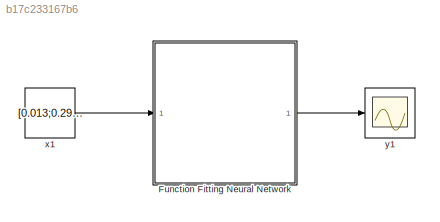
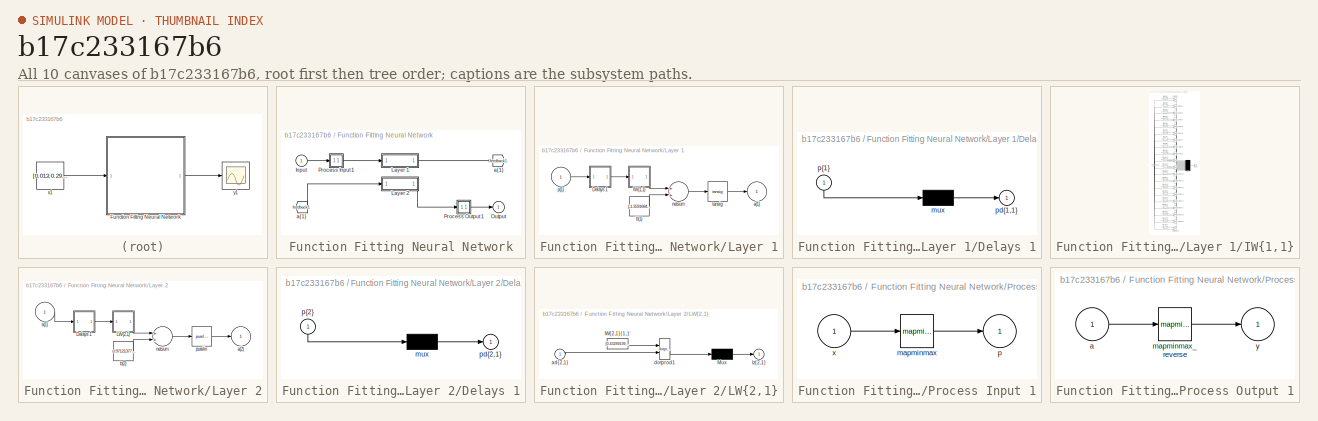
[diagram: thumbnail index - all 10 canvases of the model, root first then tree order]
MODEL slx_b17c233167b6
KIND model
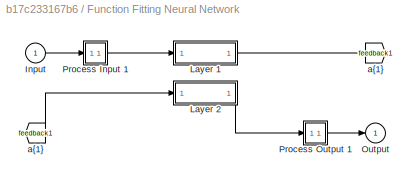
BLOCK [SubSystem] Function Fitting Neural Network
  Ports = [1, 1]
  RequestExecContextInheritance = off
BLOCK [From] Function Fitting Neural Network/ a{1} 
  GotoTag = feedback1
BLOCK [Inport] Function Fitting Neural Network/Input
  IconDisplay = Port number
  PortDimensions = 4800
BLOCK [SubSystem] Function Fitting Neural Network/Layer 1
  Ports = [1, 1]
  RequestExecContextInheritance = off
BLOCK [SubSystem] Function Fitting Neural Network/Layer 1/Delays 1
  Ports = [1, 1]
  RequestExecContextInheritance = off
BLOCK [Mux] Function Fitting Neural Network/Layer 1/Delays 1/mux
  Inputs = 1
  Ports = [1, 1]
BLOCK [Outport] Function Fitting Neural Network/Layer 1/Delays 1/pd{1,1}
  IconDisplay = Port number
BLOCK [Inport] Function Fitting Neural Network/Layer 1/Delays 1/p{1}
  IconDisplay = Port number
  PortDimensions = 4800
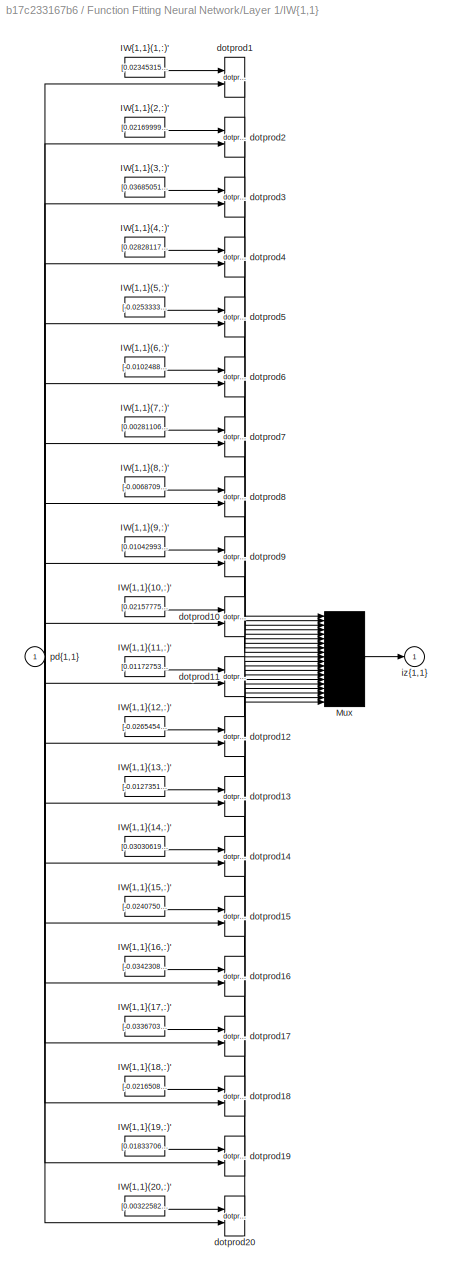
BLOCK [SubSystem] Function Fitting Neural Network/Layer 1/IW{1,1}
  Ports = [1, 1]
  RequestExecContextInheritance = off
BLOCK [Constant] Function Fitting Neural Network/Layer 1/IW{1,1}/IW{1,1}(1,:)'
  Value = [0.023453152414514074;0.010086622813460948;0.029880141339926242;0.046521232093490968;0.01104410987530919;-0.022645543602293663;-0.026015231113073408;-0.012564698208464483;-0.0527347796072071;0.027819334930927492;-0.012278464135484861;0.0038147418688932446;0.02261155690430576;0.00079410344891596354;-0.044110679287349554;0.014770874426324344;0.010901477956075137;-0.032588921568185117;0.0266753948553...<+103739ch>
BLOCK [Constant] Function Fitting Neural Network/Layer 1/IW{1,1}/IW{1,1}(10,:)'
  Value = [0.021577757762306107;-0.023883907218898673;-0.013650774413681059;-0.0023172771316909138;-0.0291568736045585;0.024594030512408424;0.018207383327099473;0.0029225121889399448;-0.036240733702542938;0.030372763756942738;0.036587292857449993;-0.014862223593950796;-0.01355130120623224;0.026186287683406764;0.030959434389333618;0.031540635448813241;-0.00074230025492756895;0.01747073238262643;0.00083227003...<+103801ch>
BLOCK [Constant] Function Fitting Neural Network/Layer 1/IW{1,1}/IW{1,1}(11,:)'
  Value = [0.011727536579058451;0.033483229356351632;-0.035256150461311961;-0.010231779800756841;0.021994217986437303;0.01700425440172304;0.027584941703213739;-0.035681031581511487;0.022779144771533193;0.027727541496033112;-0.026251498606517487;-0.03572903511774355;-0.015231422908164524;-0.010548469361745777;0.019622439839397255;0.010758619093163229;-0.011101396570409382;0.022377725261205912;0.0051475619783...<+103562ch>
BLOCK [Constant] Function Fitting Neural Network/Layer 1/IW{1,1}/IW{1,1}(12,:)'
  Value = [-0.026545436351179265;0.011136238570345363;0.030592718642918411;0.013193503965021553;-0.019107996389210753;-0.027283375978226769;-0.030686685896298124;0.010341954516792172;-0.023215665600563259;-0.027076714258963862;-0.031287348195449101;0.005076278132100296;-0.011353835862748199;0.0018526316881242973;-0.0025005440346263911;0.028776173168219725;0.027690607945003196;-0.020216950445875195;0.0003747...<+103536ch>
BLOCK [Constant] Function Fitting Neural Network/Layer 1/IW{1,1}/IW{1,1}(13,:)'
  Value = [-0.012735135206224516;-0.024185567806994306;-0.021673971576993824;-0.018682601065255492;-0.0075597312982765121;-0.0051937654448807342;0.0052406765918456199;0.0028437356052451769;-0.025031961682765603;0.02004249104584617;0.011024637173705899;-0.030494908442112202;-0.0088600512317381346;0.0036190288981481308;-0.039401235123137798;-0.013777849374843918;-0.00018487298263457081;-0.027602702937633134;-...<+103595ch>
BLOCK [Constant] Function Fitting Neural Network/Layer 1/IW{1,1}/IW{1,1}(14,:)'
  Value = [0.030306199783970963;0.012019180948445911;-0.024429935056740126;0.023130397013478948;0.012668206303950481;0.0015928594946225832;-0.0011530106537761405;-0.026455382354959603;0.009916670486297045;-0.0043089741461581595;0.0017529372208394244;-0.013065628494924764;0.016582984529113824;0.015401409142245786;0.010536479546333802;-0.027593312321014744;0.021798534756843534;0.011647388794151623;-0.02692850...<+103686ch>
BLOCK [Constant] Function Fitting Neural Network/Layer 1/IW{1,1}/IW{1,1}(15,:)'
  Value = [-0.024075088733823899;0.015319540159995077;-0.023111581884001042;-0.004146926175894892;-0.028715539996309349;0.01705352344604702;-0.016097340835130682;-0.0073761955424490981;0.031607163673733847;-0.030901404645405642;0.029385872670293609;0.013838906196767132;-0.0091985849594154144;0.033096480350323552;-0.0034823394942857452;0.013325601296938418;0.019463922049372688;0.013666037923913989;0.00096314...<+103837ch>
BLOCK [Constant] Function Fitting Neural Network/Layer 1/IW{1,1}/IW{1,1}(16,:)'
  Value = [-0.034230836837266583;-0.027132837329538348;-0.026374448158731436;-0.027262654833550042;0.013273752344468441;0.0093372313853384639;-0.022800304402231904;0.018141467201322072;-0.020588693148809928;0.01897832399915092;0.022685788437351764;-0.017254495054600614;-0.00035930863530989722;-0.0036555369871288852;0.0093949959339862388;-0.033430522835681563;0.0051874700189981481;0.016462300214337686;0.0022...<+103731ch>
BLOCK [Constant] Function Fitting Neural Network/Layer 1/IW{1,1}/IW{1,1}(17,:)'
  Value = [-0.033670339641409655;-0.024135716207476496;-0.00062529299591235828;0.0031034702343158776;0.026893211962158856;-0.046011255789677033;-0.013892417254928726;0.022887820611007675;0.0090172076244330619;-0.0011269670685192306;0.014386466841711963;0.016472573511123242;-0.01973809075676328;0.022965923537203319;-0.030698746603347236;-0.028930585088525675;-0.013551417162112682;-0.0017844525925664087;-0.02...<+103801ch>
BLOCK [Constant] Function Fitting Neural Network/Layer 1/IW{1,1}/IW{1,1}(18,:)'
  Value = [-0.021650847899794951;0.01739925908918348;0.0011474711635807288;0.029520514831991251;0.005058086641639082;-0.00039908338081677633;-0.0036713974359752332;0.02989666466641093;0.027424435416077322;-0.034534943513737905;0.029954751344605547;-0.0059290853699733026;-0.022905698423505615;0.010154966291002604;-0.0058577349341553987;-0.030831296240142934;0.024071948600243021;0.012953439377869398;-0.006998...<+103897ch>
BLOCK [Constant] Function Fitting Neural Network/Layer 1/IW{1,1}/IW{1,1}(19,:)'
  Value = [0.018337068161097765;-0.015552568791731395;0.033193441470791354;-0.022913855633931089;0.01387294129690462;0.032258666510185816;-0.018118023518245079;0.034516361322452213;0.016749902501462865;0.019960267996309733;0.021734175281138027;0.0091168168109616709;0.0031946149927985206;0.0018432690384041245;-0.023092957007907321;-0.029133187937718127;-0.026428820072063691;-0.002235919442282209;-0.008804853...<+103729ch>
BLOCK [Constant] Function Fitting Neural Network/Layer 1/IW{1,1}/IW{1,1}(2,:)'
  Value = [0.021699994230472135;0.012337301733706917;-0.0088487735112184624;-0.025141899249030503;0.00034872662071361966;0.028666400685672843;-0.0035919474219432558;0.02071823926788758;0.016115560003452087;-0.029030864247925118;-0.01096434203745879;-0.01283311676552047;0.027657455555844652;-0.016159241438358552;-0.026533024714028831;0.028286761817811173;-0.0044154211122058393;-0.0096750921165179773;0.011076...<+103695ch>
BLOCK [Constant] Function Fitting Neural Network/Layer 1/IW{1,1}/IW{1,1}(20,:)'
  Value = [0.0032258249225753078;-0.010256018490857026;0.0026712358139608337;0.023685831789770222;0.019285035492319507;0.0060662035191251171;0.028028190447309899;-0.031174941761859257;0.0012950541728624001;-0.011323655620711292;-0.0040198689588477913;0.02535270567250094;0.0010751831620710631;-0.016578795231684946;-0.011855847744629552;0.0049330409281610364;0.021755750873543464;0.034701131847881143;0.0159190...<+103710ch>
BLOCK [Constant] Function Fitting Neural Network/Layer 1/IW{1,1}/IW{1,1}(3,:)'
  Value = [0.036850514170333595;0.01070780297997825;-0.0018030169348842804;0.0098927996819943055;-0.0087803905358774231;-0.02799366871728335;-0.0059536104861992855;0.027971150052608269;0.019410104800965902;-0.022097099698958258;0.031269713849020539;-0.017724733064591741;-0.015071108722917321;-0.024178241379018944;0.029921339157268016;-0.0032648827443261803;0.036981602696569388;0.013221708436169584;0.0014356...<+103676ch>
BLOCK [Constant] Function Fitting Neural Network/Layer 1/IW{1,1}/IW{1,1}(4,:)'
  Value = [0.028281176066493108;0.022764981092428142;-0.01851302071862328;-0.0075189341958588609;0.012858494984593084;-0.01173779462357862;-0.02517872504956415;-0.011906471898066782;-0.018306136929093882;-0.012196897218594696;-0.034735612733028727;-0.03048022434538835;-0.028555752289981241;0.010117297262024139;-0.018804659808484409;0.018532230647123484;-0.0032279949606916075;0.011408901926368729;0.011498950...<+103914ch>
BLOCK [Constant] Function Fitting Neural Network/Layer 1/IW{1,1}/IW{1,1}(5,:)'
  Value = [-0.025333329139661357;-0.028889970139974776;0.017218895097556721;0.013348685724940789;-0.028982671677878005;-0.029016106647054868;0.014211020993745946;-0.029396454599084305;-0.0035717379823291631;-0.016048066567527542;-0.003951707263251605;-0.017013380523950624;0.0016234614074071623;-0.03163396425632517;-0.031265887428576632;-0.007770474645033781;0.017581009452514701;-0.0015369550942228199;0.0207...<+103791ch>
BLOCK [Constant] Function Fitting Neural Network/Layer 1/IW{1,1}/IW{1,1}(6,:)'
  Value = [-0.010248801553063147;0.019186019716248021;-0.025785901086787612;-0.015456715646882099;0.0036436693577541288;-0.029214091952582504;0.02764888994369382;0.0048463210512822716;0.029940522257989582;0.037134231519580493;-0.0065449547436202604;-0.024823940413581495;0.022310480552634539;-0.0085830802961355864;-0.018945340199202163;0.023548854895446648;-0.0051997953129447128;0.030486608754204308;-0.01528...<+104052ch>
BLOCK [Constant] Function Fitting Neural Network/Layer 1/IW{1,1}/IW{1,1}(7,:)'
  Value = [0.0028110629592186182;-0.0019486371766210188;-0.010532189426777114;0.030919837915453656;0.021068865124768379;-0.018461104504996363;0.0087250053010448497;-0.022831259989622786;-0.0054486459386072078;0.030961054553205421;0.0091858305506759535;-0.004398290643619426;0.038727131708465978;0.018989523707927624;-0.03110493167478981;-0.022507294982574835;-0.0051952106185620631;-0.0084629769309983935;0.010...<+103970ch>
BLOCK [Constant] Function Fitting Neural Network/Layer 1/IW{1,1}/IW{1,1}(8,:)'
  Value = [-0.0068709653474060758;-0.01803887201600211;0.0019679948946421727;-0.02573052766665614;0.027551091610104932;-0.023642230989760454;0.017454766782982013;0.011688086473510165;0.0061780882830214318;0.012144171693723168;0.036599366992894351;-0.016311484555579139;-0.015112532065628731;-0.014448356330669364;-0.016074980345777024;-0.0086306028652020968;0.015014062060010077;0.021130064442233951;0.01479973...<+103984ch>
BLOCK [Constant] Function Fitting Neural Network/Layer 1/IW{1,1}/IW{1,1}(9,:)'
  Value = [0.0104299380475079;0.020859516806310423;-0.012540161703382624;0.026316659309489811;-0.015782987786656114;0.0023192930081203851;-0.02572793193009117;-0.011040340010160851;0.021344046502674938;0.020605878081650018;-0.01889155810491849;0.014310661778260644;0.0038597352571561588;0.0077414458097942356;0.0013362807808614207;-0.023514112019987203;0.021242907983239894;0.017672645856744371;-0.001515909996...<+103611ch>
BLOCK [Mux] Function Fitting Neural Network/Layer 1/IW{1,1}/Mux
  Inputs = 20
  Ports = [20, 1]
BLOCK [Reference] Function Fitting Neural Network/Layer 1/IW{1,1}/dotprod1  REF=neural/Weight Functions/dotprod
  Ports = [2, 1]
  SourceBlock = neural/Weight Functions/dotprod
  SourceType = DOTPROD
BLOCK [Reference] Function Fitting Neural Network/Layer 1/IW{1,1}/dotprod10  REF=neural/Weight Functions/dotprod
  Ports = [2, 1]
  SourceBlock = neural/Weight Functions/dotprod
  SourceType = DOTPROD
BLOCK [Reference] Function Fitting Neural Network/Layer 1/IW{1,1}/dotprod11  REF=neural/Weight Functions/dotprod
  Ports = [2, 1]
  SourceBlock = neural/Weight Functions/dotprod
  SourceType = DOTPROD
BLOCK [Reference] Function Fitting Neural Network/Layer 1/IW{1,1}/dotprod12  REF=neural/Weight Functions/dotprod
  Ports = [2, 1]
  SourceBlock = neural/Weight Functions/dotprod
  SourceType = DOTPROD
BLOCK [Reference] Function Fitting Neural Network/Layer 1/IW{1,1}/dotprod13  REF=neural/Weight Functions/dotprod
  Ports = [2, 1]
  SourceBlock = neural/Weight Functions/dotprod
  SourceType = DOTPROD
BLOCK [Reference] Function Fitting Neural Network/Layer 1/IW{1,1}/dotprod14  REF=neural/Weight Functions/dotprod
  Ports = [2, 1]
  SourceBlock = neural/Weight Functions/dotprod
  SourceType = DOTPROD
BLOCK [Reference] Function Fitting Neural Network/Layer 1/IW{1,1}/dotprod15  REF=neural/Weight Functions/dotprod
  Ports = [2, 1]
  SourceBlock = neural/Weight Functions/dotprod
  SourceType = DOTPROD
BLOCK [Reference] Function Fitting Neural Network/Layer 1/IW{1,1}/dotprod16  REF=neural/Weight Functions/dotprod
  Ports = [2, 1]
  SourceBlock = neural/Weight Functions/dotprod
  SourceType = DOTPROD
BLOCK [Reference] Function Fitting Neural Network/Layer 1/IW{1,1}/dotprod17  REF=neural/Weight Functions/dotprod
  Ports = [2, 1]
  SourceBlock = neural/Weight Functions/dotprod
  SourceType = DOTPROD
BLOCK [Reference] Function Fitting Neural Network/Layer 1/IW{1,1}/dotprod18  REF=neural/Weight Functions/dotprod
  Ports = [2, 1]
  SourceBlock = neural/Weight Functions/dotprod
  SourceType = DOTPROD
BLOCK [Reference] Function Fitting Neural Network/Layer 1/IW{1,1}/dotprod19  REF=neural/Weight Functions/dotprod
  Ports = [2, 1]
  SourceBlock = neural/Weight Functions/dotprod
  SourceType = DOTPROD
BLOCK [Reference] Function Fitting Neural Network/Layer 1/IW{1,1}/dotprod2  REF=neural/Weight Functions/dotprod
  Ports = [2, 1]
  SourceBlock = neural/Weight Functions/dotprod
  SourceType = DOTPROD
BLOCK [Reference] Function Fitting Neural Network/Layer 1/IW{1,1}/dotprod20  REF=neural/Weight Functions/dotprod
  Ports = [2, 1]
  SourceBlock = neural/Weight Functions/dotprod
  SourceType = DOTPROD
BLOCK [Reference] Function Fitting Neural Network/Layer 1/IW{1,1}/dotprod3  REF=neural/Weight Functions/dotprod
  Ports = [2, 1]
  SourceBlock = neural/Weight Functions/dotprod
  SourceType = DOTPROD
BLOCK [Reference] Function Fitting Neural Network/Layer 1/IW{1,1}/dotprod4  REF=neural/Weight Functions/dotprod
  Ports = [2, 1]
  SourceBlock = neural/Weight Functions/dotprod
  SourceType = DOTPROD
BLOCK [Reference] Function Fitting Neural Network/Layer 1/IW{1,1}/dotprod5  REF=neural/Weight Functions/dotprod
  Ports = [2, 1]
  SourceBlock = neural/Weight Functions/dotprod
  SourceType = DOTPROD
BLOCK [Reference] Function Fitting Neural Network/Layer 1/IW{1,1}/dotprod6  REF=neural/Weight Functions/dotprod
  Ports = [2, 1]
  SourceBlock = neural/Weight Functions/dotprod
  SourceType = DOTPROD
BLOCK [Reference] Function Fitting Neural Network/Layer 1/IW{1,1}/dotprod7  REF=neural/Weight Functions/dotprod
  Ports = [2, 1]
  SourceBlock = neural/Weight Functions/dotprod
  SourceType = DOTPROD
BLOCK [Reference] Function Fitting Neural Network/Layer 1/IW{1,1}/dotprod8  REF=neural/Weight Functions/dotprod
  Ports = [2, 1]
  SourceBlock = neural/Weight Functions/dotprod
  SourceType = DOTPROD
BLOCK [Reference] Function Fitting Neural Network/Layer 1/IW{1,1}/dotprod9  REF=neural/Weight Functions/dotprod
  Ports = [2, 1]
  SourceBlock = neural/Weight Functions/dotprod
  SourceType = DOTPROD
BLOCK [Outport] Function Fitting Neural Network/Layer 1/IW{1,1}/iz{1,1}
  IconDisplay = Port number
BLOCK [Inport] Function Fitting Neural Network/Layer 1/IW{1,1}/pd{1,1}
  IconDisplay = Port number
  PortDimensions = 4800
BLOCK [Outport] Function Fitting Neural Network/Layer 1/a{1}
  IconDisplay = Port number
  InitialOutput = [0;0;0;0;0;0;0;0;0;0;0;0;0;0;0;0;0;0;0;0]
BLOCK [Constant] Function Fitting Neural Network/Layer 1/b{1}
  Value = [-1.3591684164839462;-1.2542492424012608;-1.104713726743473;-0.96143366612327241;0.81436875504268502;0.64322161520346355;-0.5252815710149028;0.35242783784621406;-0.2027214551539227;-0.073357531065857656;0.087228351435731571;-0.20357976677146611;-0.3545411962357497;0.52218200725293451;-0.6756570708659394;-0.81271596137742075;-0.94210093124104544;-1.1087481576922331;1.257169579856279;1.4036037877489...<+4ch>
BLOCK [Sum] Function Fitting Neural Network/Layer 1/netsum
  Inputs = 2
  Ports = [2, 1]
BLOCK [Inport] Function Fitting Neural Network/Layer 1/p{1}
  IconDisplay = Port number
  PortDimensions = 4800
BLOCK [Reference] Function Fitting Neural Network/Layer 1/tansig  REF=neural/Transfer Functions/tansig
  Ports = [1, 1]
  SourceBlock = neural/Transfer Functions/tansig
  SourceType = TANSIG
BLOCK [SubSystem] Function Fitting Neural Network/Layer 2
  Ports = [1, 1]
  RequestExecContextInheritance = off
BLOCK [SubSystem] Function Fitting Neural Network/Layer 2/Delays 1
  Ports = [1, 1]
  RequestExecContextInheritance = off
BLOCK [Mux] Function Fitting Neural Network/Layer 2/Delays 1/mux
  Inputs = 1
  Ports = [1, 1]
BLOCK [Outport] Function Fitting Neural Network/Layer 2/Delays 1/pd{2,1}
  IconDisplay = Port number
BLOCK [Inport] Function Fitting Neural Network/Layer 2/Delays 1/p{2}
  IconDisplay = Port number
  PortDimensions = 20
BLOCK [SubSystem] Function Fitting Neural Network/Layer 2/LW{2,1}
  Ports = [1, 1]
  RequestExecContextInheritance = off
BLOCK [Constant] Function Fitting Neural Network/Layer 2/LW{2,1}/IW{2,1}(1,:)'
  Value = [0.4328919920879426;-0.058248402710414357;0.15474281862801798;0.87565068428679194;-0.099078097113706409;-0.71973921166576815;0.37851507322797162;-0.75414360707856953;0.57824118532728574;0.08638378609416171;0.35106744530304862;0.28912377342075868;0.38851068345893247;-0.25999988625007586;-0.61078930825911282;-0.020108344978333192;0.48968199630235443;0.87019368233444627;0.11101200534097111;-0.6456294...<+10ch>
BLOCK [Mux] Function Fitting Neural Network/Layer 2/LW{2,1}/Mux
  Inputs = 1
  Ports = [1, 1]
BLOCK [Inport] Function Fitting Neural Network/Layer 2/LW{2,1}/ad{2,1}
  IconDisplay = Port number
  PortDimensions = 20
BLOCK [Reference] Function Fitting Neural Network/Layer 2/LW{2,1}/dotprod1  REF=neural/Weight Functions/dotprod
  Ports = [2, 1]
  SourceBlock = neural/Weight Functions/dotprod
  SourceType = DOTPROD
BLOCK [Outport] Function Fitting Neural Network/Layer 2/LW{2,1}/lz{2,1}
  IconDisplay = Port number
BLOCK [Inport] Function Fitting Neural Network/Layer 2/a{1} 
  IconDisplay = Port number
  PortDimensions = 20
BLOCK [Outport] Function Fitting Neural Network/Layer 2/a{2}
  IconDisplay = Port number
  InitialOutput = 0
BLOCK [Constant] Function Fitting Neural Network/Layer 2/b{2}
  Value = -0.9712137701031287
BLOCK [Sum] Function Fitting Neural Network/Layer 2/netsum
  Inputs = 2
  Ports = [2, 1]
BLOCK [Reference] Function Fitting Neural Network/Layer 2/purelin  REF=neural/Transfer Functions/purelin
  Ports = [1, 1]
  SourceBlock = neural/Transfer Functions/purelin
  SourceType = PURELIN
BLOCK [Outport] Function Fitting Neural Network/Output
  IconDisplay = Port number
  InitialOutput = 0
BLOCK [SubSystem] Function Fitting Neural Network/Process Input 1
  Ports = [1, 1]
  RequestExecContextInheritance = off
BLOCK [Reference] Function Fitting Neural Network/Process Input 1/mapminmax  REF=neural/Processing Functions/mapminmax
  Ports = [1, 1]
  SourceBlock = neural/Processing Functions/mapminmax
  SourceType = MAPMINMAX Preprocess
  xmax = [198;196;195;226;210;206;250;229;225;236;234;230;237;236;232;233;232;228;223;222;218;235;234;230;227;223;221;209;206;202;232;229;225;220;219;215;206;207;205;232;236;231;240;244;239;217;219;214;234;236;231;231;229;228;235;233;232;222;220;219;239;240;236;237;238;234;203;204;200;189;190;186;223;224;220;217;218;214;242;246;241;240;244;239;239;243;238;234;238;233;240;244;239;232;235;230;244;244;241;234...<+18801ch>
  xmin = [11;15;11;8;12;9;8;13;9;4;13;9;7;14;9;8;16;13;9;13;13;10;12;10;9;8;0;7;11;10;9;8;14;7;11;4;7;11;10;4;10;7;1;11;13;7;13;17;2;10;19;0;2;0;6;8;12;6;10;13;3;12;14;5;13;10;2;11;9;4;8;14;0;11;12;8;13;33;6;7;13;8;12;51;6;12;46;0;0;0;1;14;62;0;8;26;4;8;52;4;7;7;3;10;8;8;9;26;6;10;14;0;5;4;4;7;31;1;7;10;3;5;12;0;6;3;2;8;4;0;14;15;1;10;62;5;9;16;0;7;69;0;7;65;0;7;97;4;10;31;6;11;31;3;10;8;2;9;67;3;11;74;1;9...<+11121ch>
  ymax = 1
  ymin = -1
BLOCK [Outport] Function Fitting Neural Network/Process Input 1/p
  IconDisplay = Port number
  PortDimensions = 4800
BLOCK [Inport] Function Fitting Neural Network/Process Input 1/x
  IconDisplay = Port number
  PortDimensions = 4800
BLOCK [SubSystem] Function Fitting Neural Network/Process Output 1
  Ports = [1, 1]
  RequestExecContextInheritance = off
BLOCK [Inport] Function Fitting Neural Network/Process Output 1/a
  IconDisplay = Port number
  PortDimensions = 1
BLOCK [Reference] Function Fitting Neural Network/Process Output 1/mapminmax_reverse  REF=neural/Processing Functions/mapminmax_reverse
  Ports = [1, 1]
  SourceBlock = neural/Processing Functions/mapminmax_reverse
  SourceType = MAPMINMAX Reverse Process
  xmax = 314
  xmin = 5
  ymax = 1
  ymin = -1
BLOCK [Outport] Function Fitting Neural Network/Process Output 1/y
  IconDisplay = Port number
  PortDimensions = 1
BLOCK [Goto] Function Fitting Neural Network/a{1}
  GotoTag = feedback1
BLOCK [Constant] x1
  SampleTime = 1
  Value = [0.013;0.29;0.66;0.51;0.13;0.017;0.059;0.32;0.027;0.71;0.12;0.027;0.36;0.6;0.98;0.58;0.12;0.29;0.27;0.23;0.083;0.25;0.68;0.99;0.51;0.036;0.07;0.22;0.29;0.74;0.96;0.0058;0.074;0.67;0.41;0.75;0.75;0.56;0.72;0.25;0.89;0.59;0.3;0.45;0.95;0.19;0.61;0.35;0.45;0.68;0.48;0.2;0.11;0.1;0.32;0.28;0.82;0.9;0.72;0.1;0.5;0.2;0.1;0.73;0.037;0.15;0.82;0.053;0.63;0.99;0.96;0.79;0.068;0.69;0.84;0.67;0.64;0.86;0.48;...<+23646ch>
BLOCK [Scope] y1
  Floating = off
  NumInputPorts = 1
  Ports = [1]
  ShowLegends = off
LINE Function Fitting Neural Network/ a{1} :1 -> Function Fitting Neural Network/Layer 2:1
LINE Function Fitting Neural Network/Input:1 -> Function Fitting Neural Network/Process Input 1:1
LINE Function Fitting Neural Network/Layer 1/Delays 1/mux:1 -> Function Fitting Neural Network/Layer 1/Delays 1/pd{1,1}:1
LINE Function Fitting Neural Network/Layer 1/Delays 1/p{1}:1 -> Function Fitting Neural Network/Layer 1/Delays 1/mux:1
LINE Function Fitting Neural Network/Layer 1/Delays 1:1 -> Function Fitting Neural Network/Layer 1/IW{1,1}:1
LINE Function Fitting Neural Network/Layer 1/IW{1,1}/IW{1,1}(1,:)':1 -> Function Fitting Neural Network/Layer 1/IW{1,1}/dotprod1:1
LINE Function Fitting Neural Network/Layer 1/IW{1,1}/IW{1,1}(10,:)':1 -> Function Fitting Neural Network/Layer 1/IW{1,1}/dotprod10:1
LINE Function Fitting Neural Network/Layer 1/IW{1,1}/IW{1,1}(11,:)':1 -> Function Fitting Neural Network/Layer 1/IW{1,1}/dotprod11:1
LINE Function Fitting Neural Network/Layer 1/IW{1,1}/IW{1,1}(12,:)':1 -> Function Fitting Neural Network/Layer 1/IW{1,1}/dotprod12:1
LINE Function Fitting Neural Network/Layer 1/IW{1,1}/IW{1,1}(13,:)':1 -> Function Fitting Neural Network/Layer 1/IW{1,1}/dotprod13:1
LINE Function Fitting Neural Network/Layer 1/IW{1,1}/IW{1,1}(14,:)':1 -> Function Fitting Neural Network/Layer 1/IW{1,1}/dotprod14:1
LINE Function Fitting Neural Network/Layer 1/IW{1,1}/IW{1,1}(15,:)':1 -> Function Fitting Neural Network/Layer 1/IW{1,1}/dotprod15:1
LINE Function Fitting Neural Network/Layer 1/IW{1,1}/IW{1,1}(16,:)':1 -> Function Fitting Neural Network/Layer 1/IW{1,1}/dotprod16:1
LINE Function Fitting Neural Network/Layer 1/IW{1,1}/IW{1,1}(17,:)':1 -> Function Fitting Neural Network/Layer 1/IW{1,1}/dotprod17:1
LINE Function Fitting Neural Network/Layer 1/IW{1,1}/IW{1,1}(18,:)':1 -> Function Fitting Neural Network/Layer 1/IW{1,1}/dotprod18:1
LINE Function Fitting Neural Network/Layer 1/IW{1,1}/IW{1,1}(19,:)':1 -> Function Fitting Neural Network/Layer 1/IW{1,1}/dotprod19:1
LINE Function Fitting Neural Network/Layer 1/IW{1,1}/IW{1,1}(2,:)':1 -> Function Fitting Neural Network/Layer 1/IW{1,1}/dotprod2:1
LINE Function Fitting Neural Network/Layer 1/IW{1,1}/IW{1,1}(20,:)':1 -> Function Fitting Neural Network/Layer 1/IW{1,1}/dotprod20:1
LINE Function Fitting Neural Network/Layer 1/IW{1,1}/IW{1,1}(3,:)':1 -> Function Fitting Neural Network/Layer 1/IW{1,1}/dotprod3:1
LINE Function Fitting Neural Network/Layer 1/IW{1,1}/IW{1,1}(4,:)':1 -> Function Fitting Neural Network/Layer 1/IW{1,1}/dotprod4:1
LINE Function Fitting Neural Network/Layer 1/IW{1,1}/IW{1,1}(5,:)':1 -> Function Fitting Neural Network/Layer 1/IW{1,1}/dotprod5:1
LINE Function Fitting Neural Network/Layer 1/IW{1,1}/IW{1,1}(6,:)':1 -> Function Fitting Neural Network/Layer 1/IW{1,1}/dotprod6:1
LINE Function Fitting Neural Network/Layer 1/IW{1,1}/IW{1,1}(7,:)':1 -> Function Fitting Neural Network/Layer 1/IW{1,1}/dotprod7:1
LINE Function Fitting Neural Network/Layer 1/IW{1,1}/IW{1,1}(8,:)':1 -> Function Fitting Neural Network/Layer 1/IW{1,1}/dotprod8:1
LINE Function Fitting Neural Network/Layer 1/IW{1,1}/IW{1,1}(9,:)':1 -> Function Fitting Neural Network/Layer 1/IW{1,1}/dotprod9:1
LINE Function Fitting Neural Network/Layer 1/IW{1,1}/Mux:1 -> Function Fitting Neural Network/Layer 1/IW{1,1}/iz{1,1}:1
LINE Function Fitting Neural Network/Layer 1/IW{1,1}/dotprod10:1 -> Function Fitting Neural Network/Layer 1/IW{1,1}/Mux:10
LINE Function Fitting Neural Network/Layer 1/IW{1,1}/dotprod11:1 -> Function Fitting Neural Network/Layer 1/IW{1,1}/Mux:11
LINE Function Fitting Neural Network/Layer 1/IW{1,1}/dotprod12:1 -> Function Fitting Neural Network/Layer 1/IW{1,1}/Mux:12
LINE Function Fitting Neural Network/Layer 1/IW{1,1}/dotprod13:1 -> Function Fitting Neural Network/Layer 1/IW{1,1}/Mux:13
LINE Function Fitting Neural Network/Layer 1/IW{1,1}/dotprod14:1 -> Function Fitting Neural Network/Layer 1/IW{1,1}/Mux:14
LINE Function Fitting Neural Network/Layer 1/IW{1,1}/dotprod15:1 -> Function Fitting Neural Network/Layer 1/IW{1,1}/Mux:15
LINE Function Fitting Neural Network/Layer 1/IW{1,1}/dotprod16:1 -> Function Fitting Neural Network/Layer 1/IW{1,1}/Mux:16
LINE Function Fitting Neural Network/Layer 1/IW{1,1}/dotprod17:1 -> Function Fitting Neural Network/Layer 1/IW{1,1}/Mux:17
LINE Function Fitting Neural Network/Layer 1/IW{1,1}/dotprod18:1 -> Function Fitting Neural Network/Layer 1/IW{1,1}/Mux:18
LINE Function Fitting Neural Network/Layer 1/IW{1,1}/dotprod19:1 -> Function Fitting Neural Network/Layer 1/IW{1,1}/Mux:19
LINE Function Fitting Neural Network/Layer 1/IW{1,1}/dotprod1:1 -> Function Fitting Neural Network/Layer 1/IW{1,1}/Mux:1
LINE Function Fitting Neural Network/Layer 1/IW{1,1}/dotprod20:1 -> Function Fitting Neural Network/Layer 1/IW{1,1}/Mux:20
LINE Function Fitting Neural Network/Layer 1/IW{1,1}/dotprod2:1 -> Function Fitting Neural Network/Layer 1/IW{1,1}/Mux:2
LINE Function Fitting Neural Network/Layer 1/IW{1,1}/dotprod3:1 -> Function Fitting Neural Network/Layer 1/IW{1,1}/Mux:3
LINE Function Fitting Neural Network/Layer 1/IW{1,1}/dotprod4:1 -> Function Fitting Neural Network/Layer 1/IW{1,1}/Mux:4
LINE Function Fitting Neural Network/Layer 1/IW{1,1}/dotprod5:1 -> Function Fitting Neural Network/Layer 1/IW{1,1}/Mux:5
LINE Function Fitting Neural Network/Layer 1/IW{1,1}/dotprod6:1 -> Function Fitting Neural Network/Layer 1/IW{1,1}/Mux:6
LINE Function Fitting Neural Network/Layer 1/IW{1,1}/dotprod7:1 -> Function Fitting Neural Network/Layer 1/IW{1,1}/Mux:7
LINE Function Fitting Neural Network/Layer 1/IW{1,1}/dotprod8:1 -> Function Fitting Neural Network/Layer 1/IW{1,1}/Mux:8
LINE Function Fitting Neural Network/Layer 1/IW{1,1}/dotprod9:1 -> Function Fitting Neural Network/Layer 1/IW{1,1}/Mux:9
NET Function Fitting Neural Network/Layer 1/IW{1,1}/pd{1,1}:1 -> Function Fitting Neural Network/Layer 1/IW{1,1}/dotprod10:2, Function Fitting Neural Network/Layer 1/IW{1,1}/dotprod11:2, Function Fitting Neural Network/Layer 1/IW{1,1}/dotprod12:2, Function Fitting Neural Network/Layer 1/IW{1,1}/dotprod13:2, Function Fitting Neural Network/Layer 1/IW{1,1}/dotprod14:2, Function Fitting Neural Network/Layer 1/IW{1,1}/dotprod15:2, Function Fitting Neural Network/Layer 1/IW{1,1}/dotprod16:2, Function Fitting Neural Network/Layer 1/IW{1,1}/dotprod17:2, Function Fitting Neural Network/Layer 1/IW{1,1}/dotprod18:2, Function Fitting Neural Network/Layer 1/IW{1,1}/dotprod19:2, Function Fitting Neural Network/Layer 1/IW{1,1}/dotprod1:2, Function Fitting Neural Network/Layer 1/IW{1,1}/dotprod20:2, Function Fitting Neural Network/Layer 1/IW{1,1}/dotprod2:2, Function Fitting Neural Network/Layer 1/IW{1,1}/dotprod3:2, Function Fitting Neural Network/Layer 1/IW{1,1}/dotprod4:2, Function Fitting Neural Network/Layer 1/IW{1,1}/dotprod5:2, Function Fitting Neural Network/Layer 1/IW{1,1}/dotprod6:2, Function Fitting Neural Network/Layer 1/IW{1,1}/dotprod7:2, Function Fitting Neural Network/Layer 1/IW{1,1}/dotprod8:2, Function Fitting Neural Network/Layer 1/IW{1,1}/dotprod9:2
LINE Function Fitting Neural Network/Layer 1/IW{1,1}:1 -> Function Fitting Neural Network/Layer 1/netsum:1
LINE Function Fitting Neural Network/Layer 1/b{1}:1 -> Function Fitting Neural Network/Layer 1/netsum:2
LINE Function Fitting Neural Network/Layer 1/netsum:1 -> Function Fitting Neural Network/Layer 1/tansig:1
LINE Function Fitting Neural Network/Layer 1/p{1}:1 -> Function Fitting Neural Network/Layer 1/Delays 1:1
LINE Function Fitting Neural Network/Layer 1/tansig:1 -> Function Fitting Neural Network/Layer 1/a{1}:1
LINE Function Fitting Neural Network/Layer 1:1 -> Function Fitting Neural Network/a{1}:1
LINE Function Fitting Neural Network/Layer 2/Delays 1/mux:1 -> Function Fitting Neural Network/Layer 2/Delays 1/pd{2,1}:1
LINE Function Fitting Neural Network/Layer 2/Delays 1/p{2}:1 -> Function Fitting Neural Network/Layer 2/Delays 1/mux:1
LINE Function Fitting Neural Network/Layer 2/Delays 1:1 -> Function Fitting Neural Network/Layer 2/LW{2,1}:1
LINE Function Fitting Neural Network/Layer 2/LW{2,1}/IW{2,1}(1,:)':1 -> Function Fitting Neural Network/Layer 2/LW{2,1}/dotprod1:1
LINE Function Fitting Neural Network/Layer 2/LW{2,1}/Mux:1 -> Function Fitting Neural Network/Layer 2/LW{2,1}/lz{2,1}:1
LINE Function Fitting Neural Network/Layer 2/LW{2,1}/ad{2,1}:1 -> Function Fitting Neural Network/Layer 2/LW{2,1}/dotprod1:2
LINE Function Fitting Neural Network/Layer 2/LW{2,1}/dotprod1:1 -> Function Fitting Neural Network/Layer 2/LW{2,1}/Mux:1
LINE Function Fitting Neural Network/Layer 2/LW{2,1}:1 -> Function Fitting Neural Network/Layer 2/netsum:1
LINE Function Fitting Neural Network/Layer 2/a{1} :1 -> Function Fitting Neural Network/Layer 2/Delays 1:1
LINE Function Fitting Neural Network/Layer 2/b{2}:1 -> Function Fitting Neural Network/Layer 2/netsum:2
LINE Function Fitting Neural Network/Layer 2/netsum:1 -> Function Fitting Neural Network/Layer 2/purelin:1
LINE Function Fitting Neural Network/Layer 2/purelin:1 -> Function Fitting Neural Network/Layer 2/a{2}:1
LINE Function Fitting Neural Network/Layer 2:1 -> Function Fitting Neural Network/Process Output 1:1
LINE Function Fitting Neural Network/Process Input 1/mapminmax:1 -> Function Fitting Neural Network/Process Input 1/p:1
LINE Function Fitting Neural Network/Process Input 1/x:1 -> Function Fitting Neural Network/Process Input 1/mapminmax:1
LINE Function Fitting Neural Network/Process Input 1:1 -> Function Fitting Neural Network/Layer 1:1
LINE Function Fitting Neural Network/Process Output 1/a:1 -> Function Fitting Neural Network/Process Output 1/mapminmax_reverse:1
LINE Function Fitting Neural Network/Process Output 1/mapminmax_reverse:1 -> Function Fitting Neural Network/Process Output 1/y:1
LINE Function Fitting Neural Network/Process Output 1:1 -> Function Fitting Neural Network/Output:1
LINE Function Fitting Neural Network:1 -> y1:1
LINE x1:1 -> Function Fitting Neural Network:1
note: NET lines group one-source signal fan-out (src -> all destinations, sorted); 1:1 wires keep LINE
